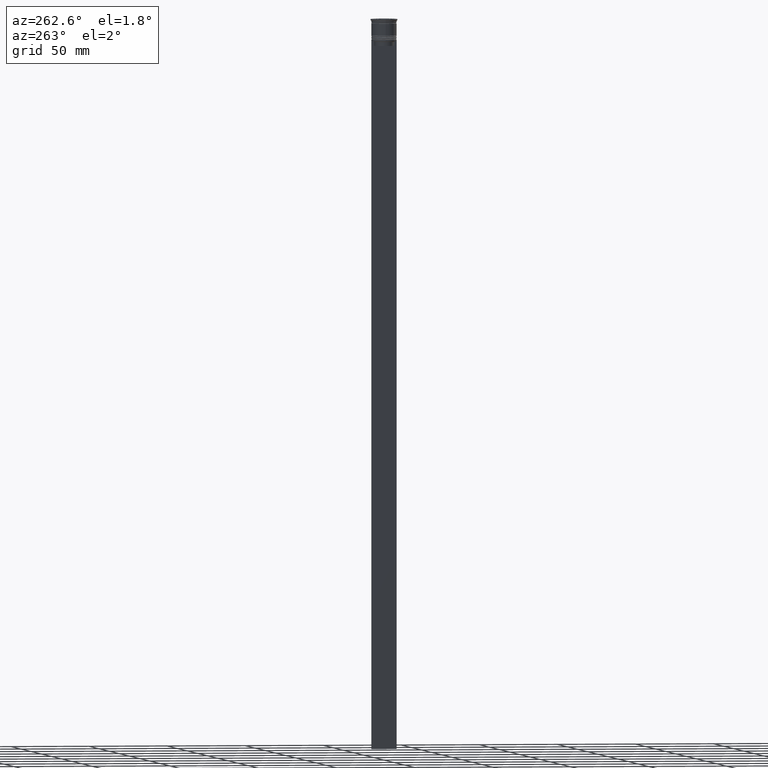
[diagram: clean part render]
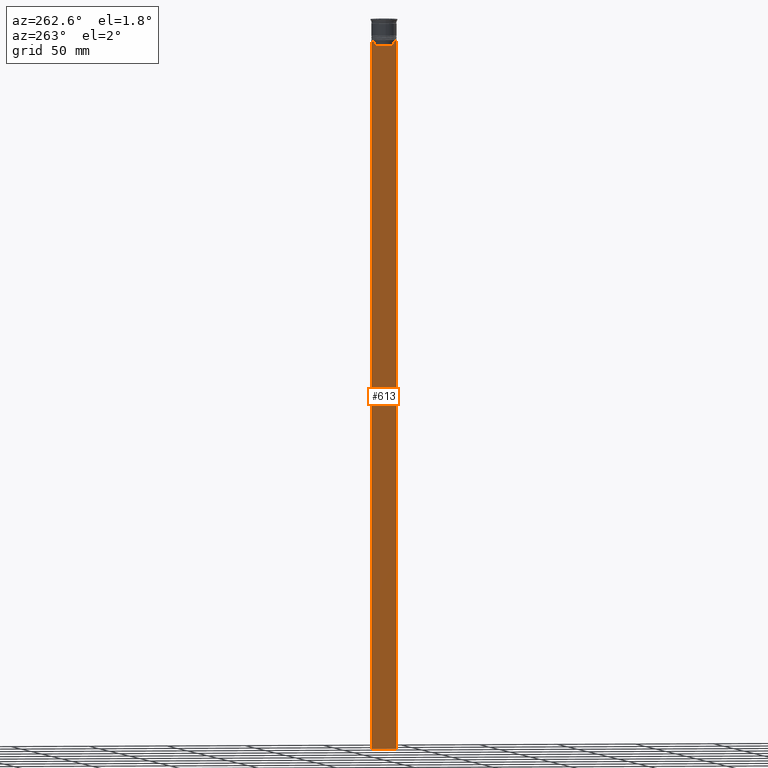
[diagram: same view with one face highlighted and labeled with its STEP entity id]
A machine part, auxiliary view. The second image highlights one B-rep face of the part: STEP entity #613.
In plain terms, the highlighted planar face has unit normal (-1, 0, 0).
Its self-contained STEP definition (entity closure, byte-faithful):
#9 = CARTESIAN_POINT ( 'NONE',  ( -0.4999999999999998890, 6.547597841304911626, -14.33335192459222718 ) ) ;
#21 = CARTESIAN_POINT ( 'NONE',  ( -0.4999999999999998890, 6.380438856379708312, -14.50000000000000000 ) ) ;
#29 = EDGE_CURVE ( 'NONE', #2463, #776, #32, .T. ) ;
#32 = LINE ( 'NONE', #805, #1510 ) ;
#38 = DIRECTION ( 'NONE',  ( 0.000000000000000000, 0.000000000000000000, -1.000000000000000000 ) ) ;
#98 = PLANE ( 'NONE',  #1433 ) ;
#120 = LINE ( 'NONE', #1583, #1876 ) ;
#171 = DIRECTION ( 'NONE',  ( 0.000000000000000000, 0.000000000000000000, -1.000000000000000000 ) ) ;
#251 = CARTESIAN_POINT ( 'NONE',  ( -0.4999999999999998890, -6.380438856379708312, -14.50000000000000000 ) ) ;
#255 = EDGE_CURVE ( 'NONE', #776, #2117, #2138, .T. ) ;
#259 = CARTESIAN_POINT ( 'NONE',  ( -0.4999999999999998890, -6.380438856379708312, -17.00000000000000000 ) ) ;
#309 = ORIENTED_EDGE ( 'NONE', *, *, #1246, .F. ) ;
#314 = VECTOR ( 'NONE', #2180, 1000.000000000000000 ) ;
#332 = DIRECTION ( 'NONE',  ( 0.000000000000000000, 1.000000000000000000, 0.000000000000000000 ) ) ;
#349 = ORIENTED_EDGE ( 'NONE', *, *, #29, .F. ) ;
#409 = CARTESIAN_POINT ( 'NONE',  ( -0.4999999999999998890, 6.380438856379708312, -14.50000000000000000 ) ) ;
#414 = EDGE_CURVE ( 'NONE', #1638, #1327, #833, .T. ) ;
#417 = DIRECTION ( 'NONE',  ( 0.000000000000000000, -1.000000000000000000, 0.000000000000000000 ) ) ;
#422 = DIRECTION ( 'NONE',  ( 0.000000000000000000, -1.000000000000000000, 0.000000000000000000 ) ) ;
#423 = ORIENTED_EDGE ( 'NONE', *, *, #1007, .F. ) ;
#437 = VECTOR ( 'NONE', #1852, 1000.000000000000000 ) ;
#459 = LINE ( 'NONE', #1224, #314 ) ;
#489 = VERTEX_POINT ( 'NONE', #259 ) ;
#494 = ORIENTED_EDGE ( 'NONE', *, *, #686, .F. ) ;
#504 = CARTESIAN_POINT ( 'NONE',  ( -0.4999999999999998890, -8.000000000000003553, -14.00000000000000178 ) ) ;
#571 = ORIENTED_EDGE ( 'NONE', *, *, #1245, .F. ) ;
#592 = CARTESIAN_POINT ( 'NONE',  ( -0.4999999999999998890, -6.881860213634098500, -14.00000000000000178 ) ) ;
#596 = VECTOR ( 'NONE', #2076, 1000.000000000000000 ) ;
#606 = CARTESIAN_POINT ( 'NONE',  ( -0.4999999999999998890, -6.547597841511246131, -14.33335192438652328 ) ) ;
#613 = ADVANCED_FACE ( 'NONE', ( #2421 ), #98, .T. ) ;
#686 = EDGE_CURVE ( 'NONE', #489, #910, #1281, .T. ) ;
#701 = DIRECTION ( 'NONE',  ( 0.000000000000000000, -1.000000000000000000, 0.000000000000000000 ) ) ;
#743 = ORIENTED_EDGE ( 'NONE', *, *, #1543, .F. ) ;
#776 = VERTEX_POINT ( 'NONE', #1725 ) ;
#805 = CARTESIAN_POINT ( 'NONE',  ( -0.4999999999999998890, -8.000000000000003553, -14.00000000000000178 ) ) ;
#811 = CARTESIAN_POINT ( 'NONE',  ( -0.4999999999999998890, 7.999999999999996447, 2.031219541881394530 ) ) ;
#817 = VERTEX_POINT ( 'NONE', #1911 ) ;
#833 = LINE ( 'NONE', #811, #1998 ) ;
#835 = VECTOR ( 'NONE', #2054, 1000.000000000000000 ) ;
#882 = ORIENTED_EDGE ( 'NONE', *, *, #2131, .F. ) ;
#883 = LINE ( 'NONE', #1839, #437 ) ;
#889 = DIRECTION ( 'NONE',  ( -1.000000000000000000, 0.000000000000000000, 0.000000000000000000 ) ) ;
#890 = VERTEX_POINT ( 'NONE', #1261 ) ;
#899 = CARTESIAN_POINT ( 'NONE',  ( -0.4999999999999998890, -6.380438856379708312, 0.000000000000000000 ) ) ;
#910 = VERTEX_POINT ( 'NONE', #1641 ) ;
#973 = CARTESIAN_POINT ( 'NONE',  ( -0.4999999999999998890, -8.000000000000003553, -464.0000000000000000 ) ) ;
#1007 = EDGE_CURVE ( 'NONE', #1638, #1028, #120, .T. ) ;
#1010 = ORIENTED_EDGE ( 'NONE', *, *, #414, .T. ) ;
#1023 = CARTESIAN_POINT ( 'NONE',  ( -0.4999999999999998890, 6.399999999999999467, -17.00000000000000000 ) ) ;
#1028 = VERTEX_POINT ( 'NONE', #2190 ) ;
#1114 = ORIENTED_EDGE ( 'NONE', *, *, #1574, .F. ) ;
#1167 = LINE ( 'NONE', #1023, #1724 ) ;
#1169 = ORIENTED_EDGE ( 'NONE', *, *, #1230, .F. ) ;
#1181 = CARTESIAN_POINT ( 'NONE',  ( -0.4999999999999998890, 7.999999999999996447, -14.00000000000000178 ) ) ;
#1189 = CARTESIAN_POINT ( 'NONE',  ( -0.4999999999999998890, -6.714736947305992132, -14.16668390685738999 ) ) ;
#1224 = CARTESIAN_POINT ( 'NONE',  ( -0.4999999999999998890, -8.000000000000003553, -14.00000000000000178 ) ) ;
#1230 = EDGE_CURVE ( 'NONE', #890, #489, #1167, .T. ) ;
#1245 = EDGE_CURVE ( 'NONE', #910, #817, #1672, .T. ) ;
#1246 = EDGE_CURVE ( 'NONE', #2058, #1619, #2036, .T. ) ;
#1261 = CARTESIAN_POINT ( 'NONE',  ( -0.4999999999999998890, 6.380438856379708312, -17.00000000000000000 ) ) ;
#1281 = LINE ( 'NONE', #899, #835 ) ;
#1327 = VERTEX_POINT ( 'NONE', #1348 ) ;
#1348 = CARTESIAN_POINT ( 'NONE',  ( -0.4999999999999998890, 7.999999999999996447, -464.0000000000000000 ) ) ;
#1379 = CARTESIAN_POINT ( 'NONE',  ( -0.4999999999999998890, 6.881860213634098500, -14.00000000000000178 ) ) ;
#1433 = AXIS2_PLACEMENT_3D ( 'NONE', #2038, #889, #2261 ) ;
#1437 = ORIENTED_EDGE ( 'NONE', *, *, #255, .F. ) ;
#1451 = CARTESIAN_POINT ( 'NONE',  ( -0.4999999999999998890, -7.884161337770806632, -14.00000000000000178 ) ) ;
#1510 = VECTOR ( 'NONE', #422, 1000.000000000000000 ) ;
#1517 = LINE ( 'NONE', #504, #596 ) ;
#1543 = EDGE_CURVE ( 'NONE', #1028, #2058, #1517, .T. ) ;
#1574 = EDGE_CURVE ( 'NONE', #2117, #1327, #2063, .T. ) ;
#1583 = CARTESIAN_POINT ( 'NONE',  ( -0.4999999999999998890, -8.000000000000003553, -14.00000000000000178 ) ) ;
#1619 = VERTEX_POINT ( 'NONE', #409 ) ;
#1638 = VERTEX_POINT ( 'NONE', #1181 ) ;
#1641 = CARTESIAN_POINT ( 'NONE',  ( -0.4999999999999998890, -6.380438856379708312, -14.50000000000000000 ) ) ;
#1672 = B_SPLINE_CURVE_WITH_KNOTS ( 'NONE', 3,
 ( #251, #606, #1189, #592 ),
 .UNSPECIFIED., .F., .F.,
 ( 4, 4 ),
 ( 0.02996184199614749730, 0.03067452609193703841 ),
 .UNSPECIFIED. ) ;
#1704 = ORIENTED_EDGE ( 'NONE', *, *, #1875, .F. ) ;
#1724 = VECTOR ( 'NONE', #417, 1000.000000000000000 ) ;
#1725 = CARTESIAN_POINT ( 'NONE',  ( -0.4999999999999998890, -8.000000000000003553, -14.00000000000000178 ) ) ;
#1757 = CARTESIAN_POINT ( 'NONE',  ( -0.4999999999999998890, 6.881860213634098500, -14.00000000000000178 ) ) ;
#1784 = CARTESIAN_POINT ( 'NONE',  ( -0.4999999999999998890, 6.714736947114692711, -14.16668390704818847 ) ) ;
#1839 = CARTESIAN_POINT ( 'NONE',  ( -0.4999999999999998890, 6.380438856379708312, 0.000000000000000000 ) ) ;
#1852 = DIRECTION ( 'NONE',  ( 0.000000000000000000, 0.000000000000000000, -1.000000000000000000 ) ) ;
#1875 = EDGE_CURVE ( 'NONE', #1619, #890, #883, .T. ) ;
#1876 = VECTOR ( 'NONE', #701, 1000.000000000000000 ) ;
#1911 = CARTESIAN_POINT ( 'NONE',  ( -0.4999999999999998890, -6.881860213634098500, -14.00000000000000178 ) ) ;
#1968 = VECTOR ( 'NONE', #332, 1000.000000000000000 ) ;
#1997 = VECTOR ( 'NONE', #171, 1000.000000000000000 ) ;
#1998 = VECTOR ( 'NONE', #38, 1000.000000000000000 ) ;
#2036 = B_SPLINE_CURVE_WITH_KNOTS ( 'NONE', 3,
 ( #1757, #1784, #9, #21 ),
 .UNSPECIFIED., .F., .F.,
 ( 4, 4 ),
 ( 0.01172465562756038263, 0.01243276816391822651 ),
 .UNSPECIFIED. ) ;
#2038 = CARTESIAN_POINT ( 'NONE',  ( -0.4999999999999998890, -8.000000000000003553, 2.031219541881394530 ) ) ;
#2054 = DIRECTION ( 'NONE',  ( -0.000000000000000000, -0.000000000000000000, 1.000000000000000000 ) ) ;
#2058 = VERTEX_POINT ( 'NONE', #1379 ) ;
#2063 = LINE ( 'NONE', #2249, #1968 ) ;
#2076 = DIRECTION ( 'NONE',  ( 0.000000000000000000, -1.000000000000000000, 0.000000000000000000 ) ) ;
#2117 = VERTEX_POINT ( 'NONE', #973 ) ;
#2122 = CARTESIAN_POINT ( 'NONE',  ( -0.4999999999999998890, -8.000000000000003553, 2.031219541881394530 ) ) ;
#2131 = EDGE_CURVE ( 'NONE', #817, #2463, #459, .T. ) ;
#2138 = LINE ( 'NONE', #2122, #1997 ) ;
#2180 = DIRECTION ( 'NONE',  ( 0.000000000000000000, -1.000000000000000000, 0.000000000000000000 ) ) ;
#2190 = CARTESIAN_POINT ( 'NONE',  ( -0.4999999999999998890, 7.884161337770806632, -14.00000000000000178 ) ) ;
#2249 = CARTESIAN_POINT ( 'NONE',  ( -0.4999999999999998890, -8.000000000000003553, -464.0000000000000000 ) ) ;
#2261 = DIRECTION ( 'NONE',  ( 0.000000000000000000, 0.000000000000000000, 1.000000000000000000 ) ) ;
#2405 = EDGE_LOOP ( 'NONE', ( #309, #743, #423, #1010, #1114, #1437, #349, #882, #571, #494, #1169, #1704 ) ) ;
#2421 = FACE_OUTER_BOUND ( 'NONE', #2405, .T. ) ;
#2463 = VERTEX_POINT ( 'NONE', #1451 ) ;